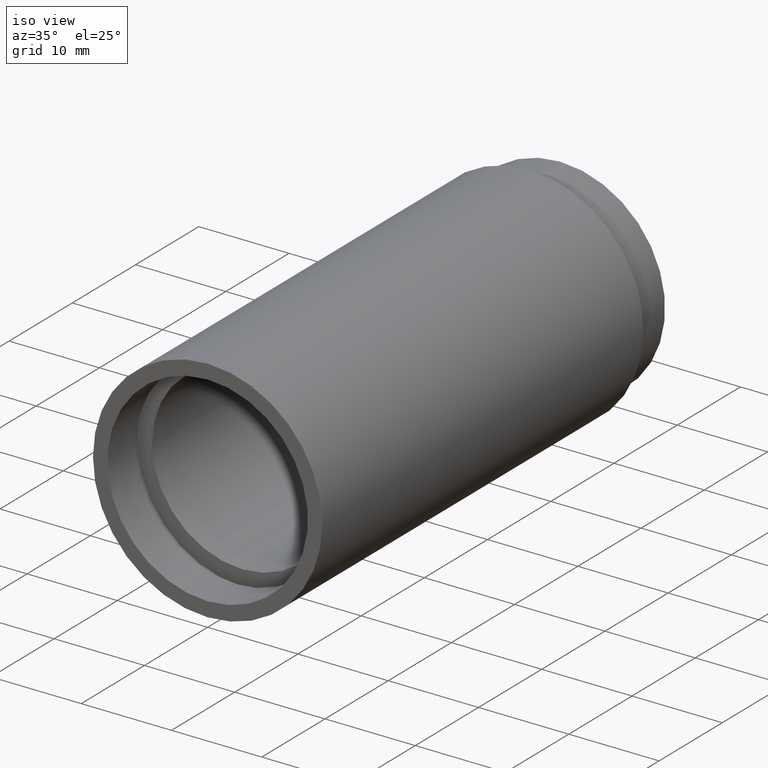
[diagram: clean part render]
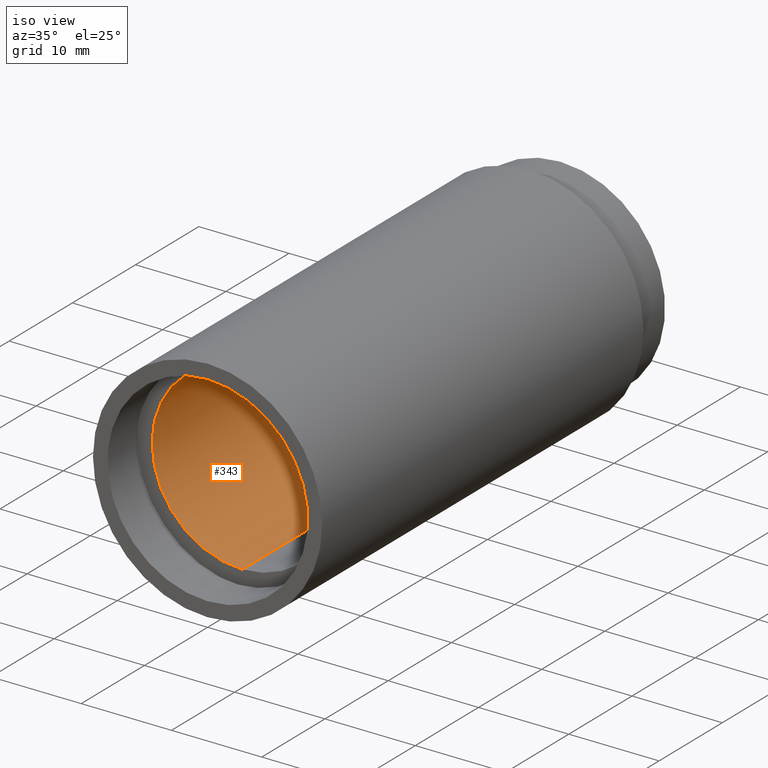
[diagram: same view with one face highlighted and labeled with its STEP entity id]
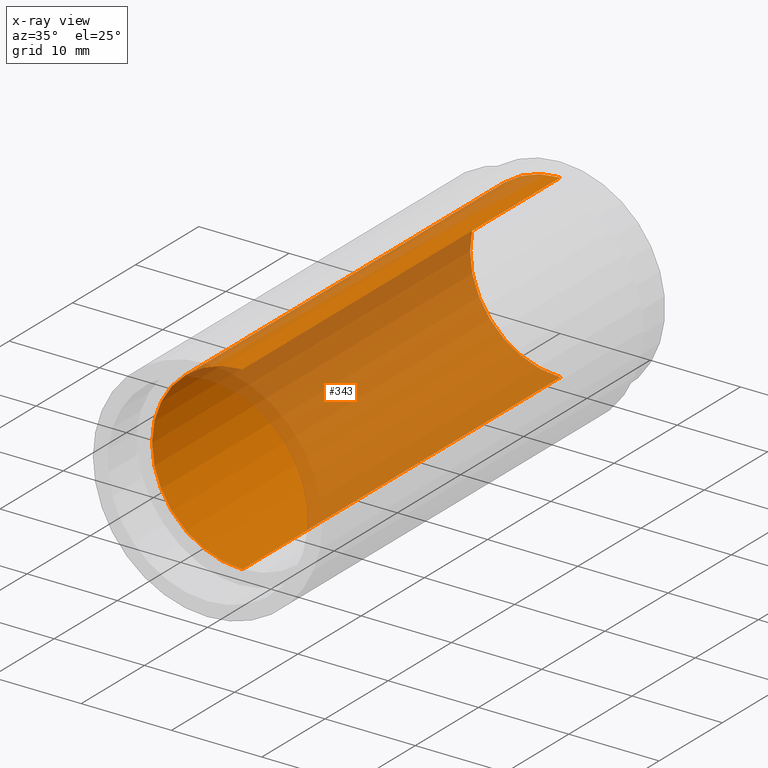
[diagram: x-ray of the same camera — body ghosted, the highlighted face saturated]
A machine part, iso view. The second image highlights one B-rep face of the part: STEP entity #343.
The next image is the same camera in x-ray: the body ghosted, the highlighted face saturated — about 65% of this face is hidden behind the body in this view.
In plain terms, the highlighted cylindrical surface (partial cylindrical patch) has radius 10 mm, axis along (-0, 1, -0).
Its self-contained STEP definition (entity closure, byte-faithful):
#3 = AXIS2_PLACEMENT_3D ( 'NONE', #70, #458, #172 ) ;
#4 = ORIENTED_EDGE ( 'NONE', *, *, #54, .F. ) ;
#34 = CARTESIAN_POINT ( 'NONE',  ( 0.0000000000000000000, 5.499999999999976900, 0.0000000000000000000 ) ) ;
#36 = DIRECTION ( 'NONE',  ( -0.0000000000000000000, 1.000000000000000000, -0.0000000000000000000 ) ) ;
#54 = EDGE_CURVE ( 'NONE', #238, #351, #503, .T. ) ;
#70 = CARTESIAN_POINT ( 'NONE',  ( 0.0000000000000000000, 161.3761669434274500, 0.0000000000000000000 ) ) ;
#108 = LINE ( 'NONE', #223, #478 ) ;
#126 = EDGE_CURVE ( 'NONE', #238, #365, #108, .T. ) ;
#131 = DIRECTION ( 'NONE',  ( 0.0000000000000000000, 0.0000000000000000000, 1.000000000000000000 ) ) ;
#140 = CARTESIAN_POINT ( 'NONE',  ( 0.0000000000000000000, 55.79999999999999000, 0.0000000000000000000 ) ) ;
#156 = FACE_OUTER_BOUND ( 'NONE', #353, .T. ) ;
#172 = DIRECTION ( 'NONE',  ( 0.0000000000000000000, 0.0000000000000000000, 1.000000000000000000 ) ) ;
#220 = CARTESIAN_POINT ( 'NONE',  ( 1.224646799147355400E-015, 55.79999999999999000, -10.00000000000002000 ) ) ;
#222 = EDGE_CURVE ( 'NONE', #365, #435, #531, .T. ) ;
#223 = CARTESIAN_POINT ( 'NONE',  ( 1.224646799147355400E-015, 161.3761669434274500, -10.00000000000002000 ) ) ;
#228 = DIRECTION ( 'NONE',  ( -0.0000000000000000000, 1.000000000000000000, -0.0000000000000000000 ) ) ;
#237 = DIRECTION ( 'NONE',  ( 0.0000000000000000000, 0.0000000000000000000, 1.000000000000000000 ) ) ;
#238 = VERTEX_POINT ( 'NONE', #239 ) ;
#239 = CARTESIAN_POINT ( 'NONE',  ( 1.224646799147355400E-015, 5.499999999999976900, -10.00000000000002000 ) ) ;
#257 = EDGE_CURVE ( 'NONE', #351, #435, #436, .T. ) ;
#294 = AXIS2_PLACEMENT_3D ( 'NONE', #34, #559, #131 ) ;
#343 = ADVANCED_FACE ( 'NONE', ( #156 ), #413, .F. ) ;
#351 = VERTEX_POINT ( 'NONE', #499 ) ;
#353 = EDGE_LOOP ( 'NONE', ( #4, #388, #591, #402 ) ) ;
#365 = VERTEX_POINT ( 'NONE', #220 ) ;
#388 = ORIENTED_EDGE ( 'NONE', *, *, #126, .T. ) ;
#401 = AXIS2_PLACEMENT_3D ( 'NONE', #140, #36, #237 ) ;
#402 = ORIENTED_EDGE ( 'NONE', *, *, #257, .F. ) ;
#413 = CYLINDRICAL_SURFACE ( 'NONE', #3, 10.00000000000002000 ) ;
#435 = VERTEX_POINT ( 'NONE', #540 ) ;
#436 = LINE ( 'NONE', #466, #542 ) ;
#458 = DIRECTION ( 'NONE',  ( -0.0000000000000000000, 1.000000000000000000, -0.0000000000000000000 ) ) ;
#466 = CARTESIAN_POINT ( 'NONE',  ( 0.0000000000000000000, 161.3761669434274500, 10.00000000000002000 ) ) ;
#478 = VECTOR ( 'NONE', #552, 1000.000000000000000 ) ;
#499 = CARTESIAN_POINT ( 'NONE',  ( 0.0000000000000000000, 5.499999999999976900, 10.00000000000002000 ) ) ;
#503 = CIRCLE ( 'NONE', #294, 10.00000000000002000 ) ;
#531 = CIRCLE ( 'NONE', #401, 10.00000000000002000 ) ;
#540 = CARTESIAN_POINT ( 'NONE',  ( 0.0000000000000000000, 55.79999999999999000, 10.00000000000002000 ) ) ;
#542 = VECTOR ( 'NONE', #228, 1000.000000000000000 ) ;
#552 = DIRECTION ( 'NONE',  ( -0.0000000000000000000, 1.000000000000000000, -0.0000000000000000000 ) ) ;
#559 = DIRECTION ( 'NONE',  ( -0.0000000000000000000, 1.000000000000000000, -0.0000000000000000000 ) ) ;
#591 = ORIENTED_EDGE ( 'NONE', *, *, #222, .T. ) ;